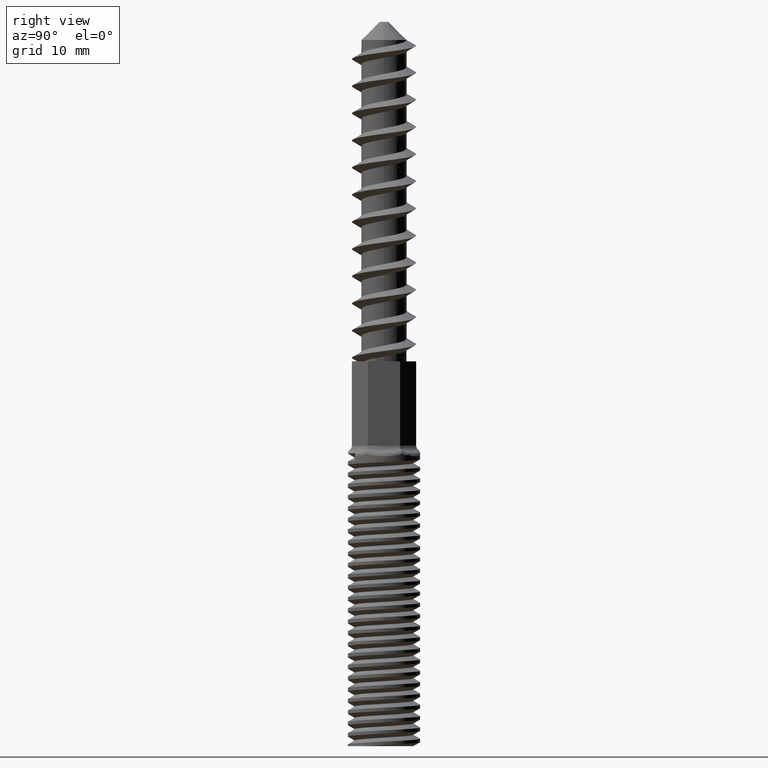
[diagram: clean part render]
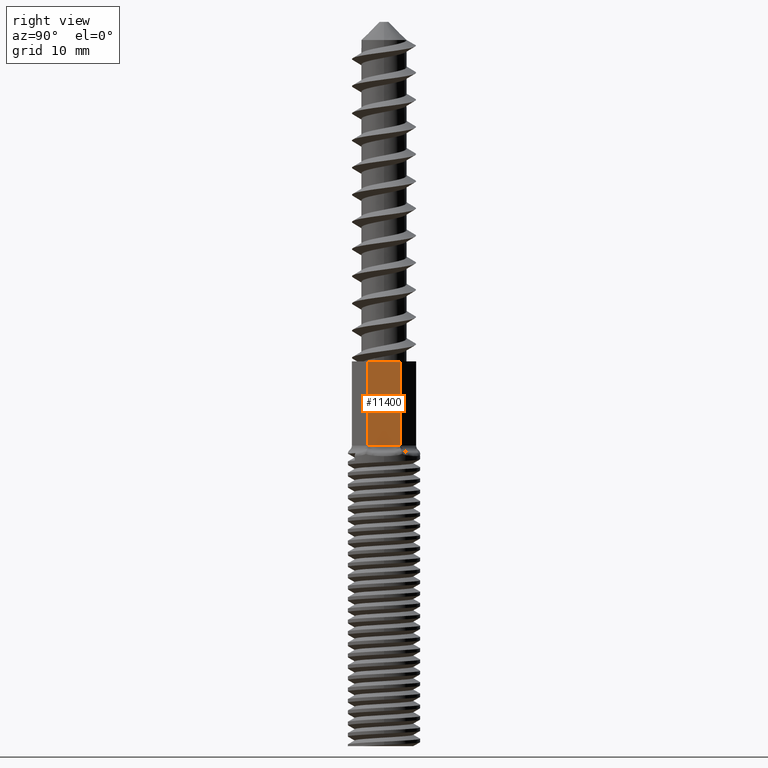
[diagram: same view with one face highlighted and labeled with its STEP entity id]
A machine part, right view. The second image highlights one B-rep face of the part: STEP entity #11400.
In plain terms, the highlighted planar face has unit normal (-1, 0, 0).
Its self-contained STEP definition (entity closure, byte-faithful):
#171 = CARTESIAN_POINT ( 'NONE',  ( 3.074390183434774700, 1.774999999999971900, -47.50000000000000000 ) ) ;
#219 = VERTEX_POINT ( 'NONE', #949 ) ;
#231 = LINE ( 'NONE', #13750, #10916 ) ;
#897 = CARTESIAN_POINT ( 'NONE',  ( 3.074390183434774700, 1.774999999999971900, -46.79289321881345400 ) ) ;
#949 = CARTESIAN_POINT ( 'NONE',  ( 3.074390183434737800, -1.775000000000036300, -46.79289321881345400 ) ) ;
#1371 = EDGE_LOOP ( 'NONE', ( #8325, #10574, #3806, #2690 ) ) ;
#1579 = DIRECTION ( 'NONE',  ( -1.038390813084706100E-014, -1.000000000000000000, 0.0000000000000000000 ) ) ;
#1719 = EDGE_CURVE ( 'NONE', #219, #7342, #9055, .T. ) ;
#1750 = VECTOR ( 'NONE', #9285, 1000.000000000000000 ) ;
#2197 = CARTESIAN_POINT ( 'NONE',  ( 3.074390183434774700, 1.774999999999971900, -37.50000000000000000 ) ) ;
#2690 = ORIENTED_EDGE ( 'NONE', *, *, #15348, .T. ) ;
#2709 = CARTESIAN_POINT ( 'NONE',  ( 3.074390183434737800, -1.775000000000036300, -37.50000000000000000 ) ) ;
#2992 = VERTEX_POINT ( 'NONE', #2197 ) ;
#3806 = ORIENTED_EDGE ( 'NONE', *, *, #4935, .T. ) ;
#4935 = EDGE_CURVE ( 'NONE', #7342, #2992, #14804, .T. ) ;
#4941 = DIRECTION ( 'NONE',  ( -1.038390813084706100E-014, -1.000000000000000000, 0.0000000000000000000 ) ) ;
#5130 = CARTESIAN_POINT ( 'NONE',  ( 3.074390183434737800, -1.775000000000036300, -46.79289321881345400 ) ) ;
#7342 = VERTEX_POINT ( 'NONE', #17837 ) ;
#7368 = EDGE_CURVE ( 'NONE', #219, #8841, #231, .T. ) ;
#7491 = VECTOR ( 'NONE', #4941, 1000.000000000000000 ) ;
#8325 = ORIENTED_EDGE ( 'NONE', *, *, #7368, .F. ) ;
#8560 = PLANE ( 'NONE',  #13989 ) ;
#8841 = VERTEX_POINT ( 'NONE', #2709 ) ;
#9055 = B_SPLINE_CURVE_WITH_KNOTS ( 'NONE', 3,
 ( #5130, #17554, #9271, #897 ),
 .UNSPECIFIED., .F., .F.,
 ( 4, 4 ),
 ( 0.0000000000000000000, 1.000000000000000000 ),
 .UNSPECIFIED. ) ;
#9271 = CARTESIAN_POINT ( 'NONE',  ( 3.074390183434762200, 0.5916666666666335900, -46.79289321881346800 ) ) ;
#9285 = DIRECTION ( 'NONE',  ( -0.0000000000000000000, -0.0000000000000000000, 1.000000000000000000 ) ) ;
#9941 = DIRECTION ( 'NONE',  ( -1.000000000000000000, 1.038390813084706100E-014, 0.0000000000000000000 ) ) ;
#10296 = CARTESIAN_POINT ( 'NONE',  ( 3.074390183434774700, 1.774999999999971900, -37.50000000000000000 ) ) ;
#10574 = ORIENTED_EDGE ( 'NONE', *, *, #1719, .T. ) ;
#10916 = VECTOR ( 'NONE', #15135, 1000.000000000000000 ) ;
#11400 = ADVANCED_FACE ( 'NONE', ( #14617 ), #8560, .F. ) ;
#13750 = CARTESIAN_POINT ( 'NONE',  ( 3.074390183434737800, -1.775000000000036300, -47.50000000000000000 ) ) ;
#13989 = AXIS2_PLACEMENT_3D ( 'NONE', #171, #9941, #1579 ) ;
#14617 = FACE_OUTER_BOUND ( 'NONE', #1371, .T. ) ;
#14804 = LINE ( 'NONE', #16177, #1750 ) ;
#15135 = DIRECTION ( 'NONE',  ( -0.0000000000000000000, -0.0000000000000000000, 1.000000000000000000 ) ) ;
#15348 = EDGE_CURVE ( 'NONE', #2992, #8841, #16124, .T. ) ;
#16124 = LINE ( 'NONE', #10296, #7491 ) ;
#16177 = CARTESIAN_POINT ( 'NONE',  ( 3.074390183434774700, 1.774999999999971900, -47.50000000000000000 ) ) ;
#17554 = CARTESIAN_POINT ( 'NONE',  ( 3.074390183434749800, -0.5916666666667018700, -46.79289321881346100 ) ) ;
#17837 = CARTESIAN_POINT ( 'NONE',  ( 3.074390183434774700, 1.774999999999971900, -46.79289321881345400 ) ) ;